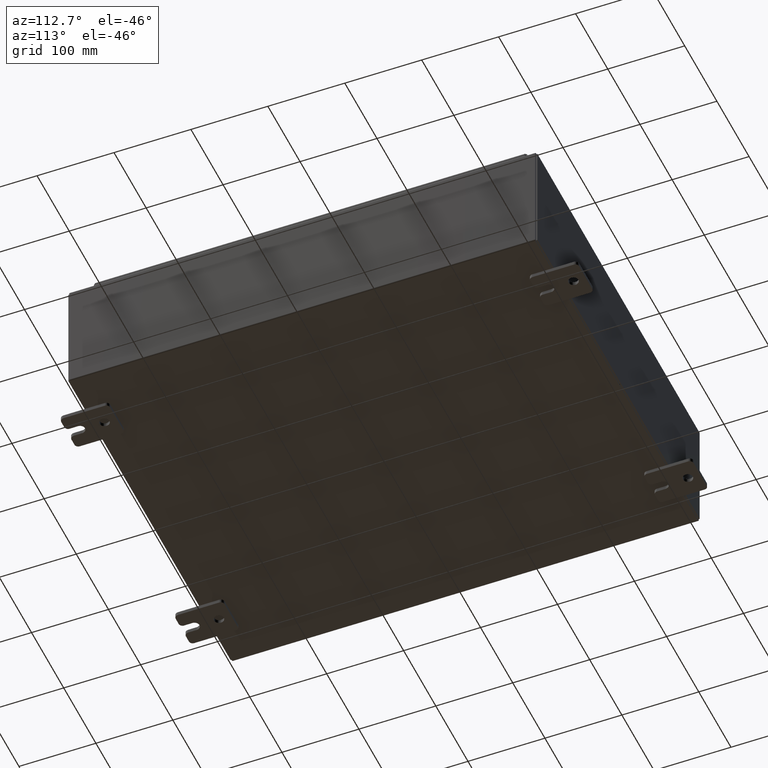
[diagram: clean part render]
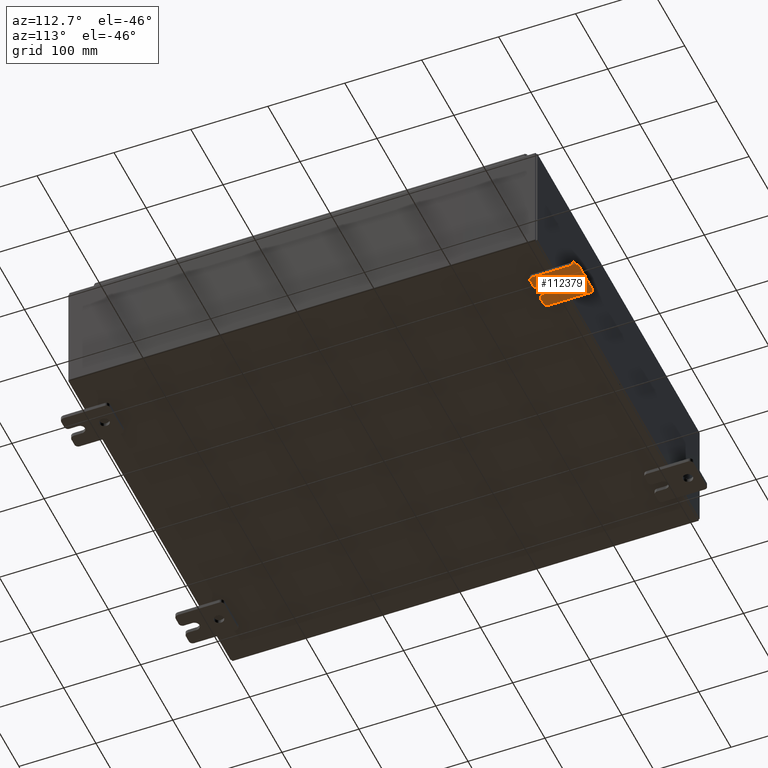
[diagram: same view with one face highlighted and labeled with its STEP entity id]
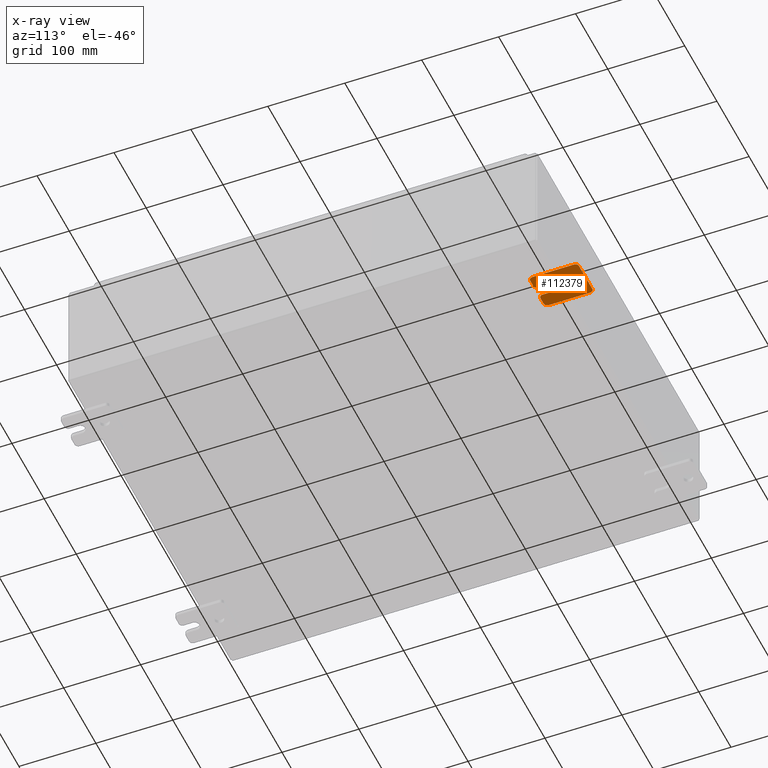
[diagram: x-ray of the same camera — body ghosted, the highlighted face saturated]
A machine part, auxiliary view. The second image highlights one B-rep face of the part: STEP entity #112379.
The next image is the same camera in x-ray: the body ghosted, the highlighted face saturated — about 0% of this face is hidden behind the body in this view.
In plain terms, the highlighted planar face has unit normal (0, 0, 1).
Its self-contained STEP definition (entity closure, byte-faithful):
#922 = ORIENTED_EDGE ( 'NONE', *, *, #39924, .F. ) ;
#2350 = EDGE_CURVE ( 'NONE', #74206, #28275, #61662, .T. ) ;
#3267 = ORIENTED_EDGE ( 'NONE', *, *, #42901, .F. ) ;
#3322 = ORIENTED_EDGE ( 'NONE', *, *, #104946, .F. ) ;
#4010 = EDGE_CURVE ( 'NONE', #28275, #74206, #49034, .T. ) ;
#8294 = CARTESIAN_POINT ( 'NONE',  ( -0.1879999999999997800, -1.060000000000002100, 0.4400000000000016700 ) ) ;
#9171 = VECTOR ( 'NONE', #62388, 39.37007874015748100 ) ;
#10861 = ORIENTED_EDGE ( 'NONE', *, *, #12699, .T. ) ;
#11117 = DIRECTION ( 'NONE',  ( -1.000000000000000000, -0.0000000000000000000, 0.0000000000000000000 ) ) ;
#11892 = CARTESIAN_POINT ( 'NONE',  ( -0.1880000000000010000, 0.6249999999999992200, -7.703811342100550500E-020 ) ) ;
#11916 = LINE ( 'NONE', #71242, #9171 ) ;
#12699 = EDGE_CURVE ( 'NONE', #43615, #62311, #93311, .T. ) ;
#13215 = CARTESIAN_POINT ( 'NONE',  ( -0.1880000000000001900, -0.6249999999999992200, 6.829619984160658000E-017 ) ) ;
#13444 = DIRECTION ( 'NONE',  ( -1.000000000000000000, -0.0000000000000000000, 0.0000000000000000000 ) ) ;
#14064 = DIRECTION ( 'NONE',  ( 0.0000000000000000000, -1.000000000000000000, 1.639108796198558100E-015 ) ) ;
#14876 = AXIS2_PLACEMENT_3D ( 'NONE', #11892, #73233, #20696 ) ;
#14898 = CARTESIAN_POINT ( 'NONE',  ( -0.1880000000000010000, 0.6249999999999992200, 0.2499999999999999200 ) ) ;
#15121 = CIRCLE ( 'NONE', #87840, 0.1900000000000011100 ) ;
#15762 = CARTESIAN_POINT ( 'NONE',  ( -0.1879999999999997800, 0.0000000000000000000, 0.0000000000000000000 ) ) ;
#16007 = CARTESIAN_POINT ( 'NONE',  ( -0.1879999999999997800, -1.060000000000001600, 0.8099999999999978300 ) ) ;
#16136 = PLANE ( 'NONE',  #69407 ) ;
#16981 = FACE_BOUND ( 'NONE', #65616, .T. ) ;
#17106 = DIRECTION ( 'NONE',  ( 0.0000000000000000000, 0.0000000000000000000, -1.000000000000000000 ) ) ;
#17965 = AXIS2_PLACEMENT_3D ( 'NONE', #8294, #69669, #17106 ) ;
#20696 = DIRECTION ( 'NONE',  ( 0.0000000000000000000, 0.0000000000000000000, -1.000000000000000000 ) ) ;
#21070 = EDGE_CURVE ( 'NONE', #64175, #82891, #15121, .T. ) ;
#21364 = EDGE_CURVE ( 'NONE', #38275, #56115, #27412, .T. ) ;
#21696 = VECTOR ( 'NONE', #62341, 39.37007874015748100 ) ;
#22039 = DIRECTION ( 'NONE',  ( -6.829619984160660000E-016, -1.000000000000000000, 0.0000000000000000000 ) ) ;
#24391 = VERTEX_POINT ( 'NONE', #34075 ) ;
#24398 = CARTESIAN_POINT ( 'NONE',  ( -0.1880000000000004700, -1.060000000000003400, -0.2499999999999994400 ) ) ;
#24643 = EDGE_CURVE ( 'NONE', #24391, #92756, #11916, .T. ) ;
#24812 = DIRECTION ( 'NONE',  ( 0.0000000000000000000, 7.189073667537492800E-016, -1.000000000000000000 ) ) ;
#25350 = CARTESIAN_POINT ( 'NONE',  ( -0.1879999999999997800, 1.059999999999996500, 0.9999999999999953400 ) ) ;
#27412 = CIRCLE ( 'NONE', #50349, 0.1900000000000011100 ) ;
#28275 = VERTEX_POINT ( 'NONE', #44166 ) ;
#29394 = VERTEX_POINT ( 'NONE', #111939 ) ;
#32569 = DIRECTION ( 'NONE',  ( 0.0000000000000000000, -1.639108796198553600E-015, -1.000000000000000000 ) ) ;
#33361 = DIRECTION ( 'NONE',  ( 1.000000000000000000, -0.0000000000000000000, -5.163192708025532000E-017 ) ) ;
#33730 = DIRECTION ( 'NONE',  ( 0.0000000000000000000, 0.0000000000000000000, -1.000000000000000000 ) ) ;
#34075 = CARTESIAN_POINT ( 'NONE',  ( -0.1879999999999997800, -1.060000000000004500, -1.000000000000006400 ) ) ;
#34468 = CARTESIAN_POINT ( 'NONE',  ( -0.1880000000000010000, 0.6249999999999992200, -7.703811342100550500E-020 ) ) ;
#36005 = CARTESIAN_POINT ( 'NONE',  ( -0.1879999999999997800, 1.249999999999994200, -1.000000000000010400 ) ) ;
#37756 = CARTESIAN_POINT ( 'NONE',  ( -0.1880000000000004700, -1.060000000000002100, 0.2500000000000005000 ) ) ;
#38275 = VERTEX_POINT ( 'NONE', #75100 ) ;
#39598 = DIRECTION ( 'NONE',  ( -1.000000000000000000, -0.0000000000000000000, 0.0000000000000000000 ) ) ;
#39924 = EDGE_CURVE ( 'NONE', #43615, #110848, #90686, .T. ) ;
#40296 = FACE_OUTER_BOUND ( 'NONE', #64046, .T. ) ;
#40851 = EDGE_CURVE ( 'NONE', #24391, #88733, #82335, .T. ) ;
#41834 = ORIENTED_EDGE ( 'NONE', *, *, #21364, .T. ) ;
#42279 = LINE ( 'NONE', #44304, #21696 ) ;
#42548 = DIRECTION ( 'NONE',  ( -0.0000000000000000000, 0.0000000000000000000, -1.000000000000000000 ) ) ;
#42901 = EDGE_CURVE ( 'NONE', #38275, #88733, #62653, .T. ) ;
#43085 = DIRECTION ( 'NONE',  ( -1.000000000000000000, -0.0000000000000000000, 0.0000000000000000000 ) ) ;
#43278 = CARTESIAN_POINT ( 'NONE',  ( -0.1879999999999997800, 1.249999999999997300, 0.8099999999999935000 ) ) ;
#43615 = VERTEX_POINT ( 'NONE', #67632 ) ;
#44166 = CARTESIAN_POINT ( 'NONE',  ( -0.1880000000000010000, 0.6249999999999992200, -0.2499999999999999200 ) ) ;
#44304 = CARTESIAN_POINT ( 'NONE',  ( -0.1880000000000001900, -0.6249999999999992200, -0.2499999999999993900 ) ) ;
#45130 = ORIENTED_EDGE ( 'NONE', *, *, #62427, .F. ) ;
#45879 = CARTESIAN_POINT ( 'NONE',  ( -0.1879999999999997800, -1.060000000000001200, 0.9999999999999988900 ) ) ;
#47008 = ORIENTED_EDGE ( 'NONE', *, *, #21070, .T. ) ;
#47066 = EDGE_CURVE ( 'NONE', #51999, #92756, #84177, .T. ) ;
#47078 = AXIS2_PLACEMENT_3D ( 'NONE', #34468, #33361, #33730 ) ;
#47269 = ORIENTED_EDGE ( 'NONE', *, *, #2350, .T. ) ;
#49034 = CIRCLE ( 'NONE', #14876, 0.2499999999999999200 ) ;
#49793 = CARTESIAN_POINT ( 'NONE',  ( -0.1879999999999997800, -1.250000000000002200, 0.9999999999999992200 ) ) ;
#50349 = AXIS2_PLACEMENT_3D ( 'NONE', #92158, #39598, #100973 ) ;
#51583 = ORIENTED_EDGE ( 'NONE', *, *, #47066, .T. ) ;
#51861 = CARTESIAN_POINT ( 'NONE',  ( -0.1879999999999997800, -1.250000000000005300, -0.8100000000000047200 ) ) ;
#51999 = VERTEX_POINT ( 'NONE', #98084 ) ;
#52412 = VERTEX_POINT ( 'NONE', #104086 ) ;
#52469 = AXIS2_PLACEMENT_3D ( 'NONE', #95662, #43085, #104509 ) ;
#53174 = CARTESIAN_POINT ( 'NONE',  ( -0.1879999999999997800, -1.250000000000003100, 0.4400000000000020000 ) ) ;
#54504 = CARTESIAN_POINT ( 'NONE',  ( -0.1879999999999997800, 1.059999999999993400, -1.000000000000010000 ) ) ;
#56115 = VERTEX_POINT ( 'NONE', #24398 ) ;
#58022 = CIRCLE ( 'NONE', #17965, 0.1900000000000011400 ) ;
#58390 = ORIENTED_EDGE ( 'NONE', *, *, #4010, .T. ) ;
#60172 = VECTOR ( 'NONE', #99309, 39.37007874015748100 ) ;
#61432 = CIRCLE ( 'NONE', #97838, 0.2499999999999999200 ) ;
#61662 = CIRCLE ( 'NONE', #47078, 0.2499999999999999200 ) ;
#62311 = VERTEX_POINT ( 'NONE', #45879 ) ;
#62341 = DIRECTION ( 'NONE',  ( -6.556435184794182400E-016, -1.000000000000000000, -1.639108796198545600E-016 ) ) ;
#62388 = DIRECTION ( 'NONE',  ( 0.0000000000000000000, 1.000000000000000000, -1.639108796198558100E-015 ) ) ;
#62427 = EDGE_CURVE ( 'NONE', #64175, #62311, #78268, .T. ) ;
#62653 = LINE ( 'NONE', #65052, #83295 ) ;
#63641 = CARTESIAN_POINT ( 'NONE',  ( -0.1879999999999997800, -1.060000000000004100, -0.8100000000000050500 ) ) ;
#64046 = EDGE_LOOP ( 'NONE', ( #922, #10861, #45130, #47008, #78143, #51583, #91590, #81288, #3267, #41834, #102375, #73336, #3322, #85048 ) ) ;
#64175 = VERTEX_POINT ( 'NONE', #25350 ) ;
#65028 = EDGE_CURVE ( 'NONE', #29394, #56115, #42279, .T. ) ;
#65052 = CARTESIAN_POINT ( 'NONE',  ( -0.1879999999999997800, -1.250000000000002200, 0.9999999999999992200 ) ) ;
#65616 = EDGE_LOOP ( 'NONE', ( #58390, #47269 ) ) ;
#65974 = CARTESIAN_POINT ( 'NONE',  ( -0.1879999999999997800, 1.059999999999996300, 0.8099999999999938400 ) ) ;
#67632 = CARTESIAN_POINT ( 'NONE',  ( -0.1879999999999997800, -1.250000000000002400, 0.8099999999999980500 ) ) ;
#68647 = VERTEX_POINT ( 'NONE', #37756 ) ;
#69407 = AXIS2_PLACEMENT_3D ( 'NONE', #15762, #95130, #42548 ) ;
#69669 = DIRECTION ( 'NONE',  ( -1.000000000000000000, -0.0000000000000000000, 0.0000000000000000000 ) ) ;
#71242 = CARTESIAN_POINT ( 'NONE',  ( -0.1879999999999997800, -1.250000000000005600, -1.000000000000006200 ) ) ;
#72464 = DIRECTION ( 'NONE',  ( 0.0000000000000000000, 0.0000000000000000000, -1.000000000000000000 ) ) ;
#73233 = DIRECTION ( 'NONE',  ( 1.000000000000000000, -0.0000000000000000000, -5.163192708025532000E-017 ) ) ;
#73336 = ORIENTED_EDGE ( 'NONE', *, *, #73408, .F. ) ;
#73408 = EDGE_CURVE ( 'NONE', #52412, #29394, #61432, .T. ) ;
#74206 = VERTEX_POINT ( 'NONE', #14898 ) ;
#74562 = DIRECTION ( 'NONE',  ( -1.000000000000000000, 6.523827964459549700E-016, 5.163192708025532000E-017 ) ) ;
#74798 = DIRECTION ( 'NONE',  ( 0.0000000000000000000, 0.0000000000000000000, -1.000000000000000000 ) ) ;
#75100 = CARTESIAN_POINT ( 'NONE',  ( -0.1879999999999997800, -1.250000000000004700, -0.4400000000000002200 ) ) ;
#75397 = CARTESIAN_POINT ( 'NONE',  ( -0.1879999999999997800, 1.249999999999997600, 0.9999999999999951200 ) ) ;
#75495 = VECTOR ( 'NONE', #14064, 39.37007874015748100 ) ;
#76010 = LINE ( 'NONE', #36005, #102124 ) ;
#77346 = DIRECTION ( 'NONE',  ( -1.000000000000000000, -0.0000000000000000000, 0.0000000000000000000 ) ) ;
#78143 = ORIENTED_EDGE ( 'NONE', *, *, #98657, .F. ) ;
#78268 = LINE ( 'NONE', #75397, #75495 ) ;
#81288 = ORIENTED_EDGE ( 'NONE', *, *, #40851, .T. ) ;
#82335 = CIRCLE ( 'NONE', #98516, 0.1900000000000011100 ) ;
#82891 = VERTEX_POINT ( 'NONE', #43278 ) ;
#83295 = VECTOR ( 'NONE', #91556, 39.37007874015748100 ) ;
#84177 = CIRCLE ( 'NONE', #52469, 0.1900000000000011100 ) ;
#85048 = ORIENTED_EDGE ( 'NONE', *, *, #113341, .T. ) ;
#87840 = AXIS2_PLACEMENT_3D ( 'NONE', #65974, #13444, #74798 ) ;
#87964 = VECTOR ( 'NONE', #32569, 39.37007874015748100 ) ;
#88733 = VERTEX_POINT ( 'NONE', #51861 ) ;
#90686 = LINE ( 'NONE', #49793, #87964 ) ;
#91556 = DIRECTION ( 'NONE',  ( 0.0000000000000000000, -1.639108796198553600E-015, -1.000000000000000000 ) ) ;
#91590 = ORIENTED_EDGE ( 'NONE', *, *, #24643, .F. ) ;
#92158 = CARTESIAN_POINT ( 'NONE',  ( -0.1879999999999997800, -1.060000000000003400, -0.4400000000000005000 ) ) ;
#92756 = VERTEX_POINT ( 'NONE', #54504 ) ;
#93311 = CIRCLE ( 'NONE', #100584, 0.1900000000000011100 ) ;
#95130 = DIRECTION ( 'NONE',  ( 1.000000000000000000, 0.0000000000000000000, -0.0000000000000000000 ) ) ;
#95662 = CARTESIAN_POINT ( 'NONE',  ( -0.1879999999999997800, 1.059999999999993600, -0.8100000000000089400 ) ) ;
#97376 = DIRECTION ( 'NONE',  ( 0.0000000000000000000, 1.639108796198553600E-015, 1.000000000000000000 ) ) ;
#97838 = AXIS2_PLACEMENT_3D ( 'NONE', #13215, #74562, #22039 ) ;
#98084 = CARTESIAN_POINT ( 'NONE',  ( -0.1879999999999997800, 1.249999999999994700, -0.8100000000000092700 ) ) ;
#98516 = AXIS2_PLACEMENT_3D ( 'NONE', #63641, #11117, #72464 ) ;
#98657 = EDGE_CURVE ( 'NONE', #51999, #82891, #76010, .T. ) ;
#99309 = DIRECTION ( 'NONE',  ( 6.556435184794182400E-016, 1.000000000000000000, 0.0000000000000000000 ) ) ;
#100584 = AXIS2_PLACEMENT_3D ( 'NONE', #16007, #77346, #24812 ) ;
#100973 = DIRECTION ( 'NONE',  ( 0.0000000000000000000, 0.0000000000000000000, -1.000000000000000000 ) ) ;
#101364 = LINE ( 'NONE', #105907, #60172 ) ;
#102124 = VECTOR ( 'NONE', #97376, 39.37007874015748100 ) ;
#102375 = ORIENTED_EDGE ( 'NONE', *, *, #65028, .F. ) ;
#104086 = CARTESIAN_POINT ( 'NONE',  ( -0.1880000000000001900, -0.6249999999999992200, 0.2500000000000005000 ) ) ;
#104509 = DIRECTION ( 'NONE',  ( 0.0000000000000000000, 0.0000000000000000000, -1.000000000000000000 ) ) ;
#104946 = EDGE_CURVE ( 'NONE', #68647, #52412, #101364, .T. ) ;
#105907 = CARTESIAN_POINT ( 'NONE',  ( -0.1880000000000005800, -1.250000000000003800, 0.2500000000000005000 ) ) ;
#110848 = VERTEX_POINT ( 'NONE', #53174 ) ;
#111939 = CARTESIAN_POINT ( 'NONE',  ( -0.1880000000000001900, -0.6249999999999992200, -0.2499999999999998600 ) ) ;
#112379 = ADVANCED_FACE ( 'NONE', ( #16981, #40296 ), #16136, .F. ) ;
#113341 = EDGE_CURVE ( 'NONE', #68647, #110848, #58022, .T. ) ;